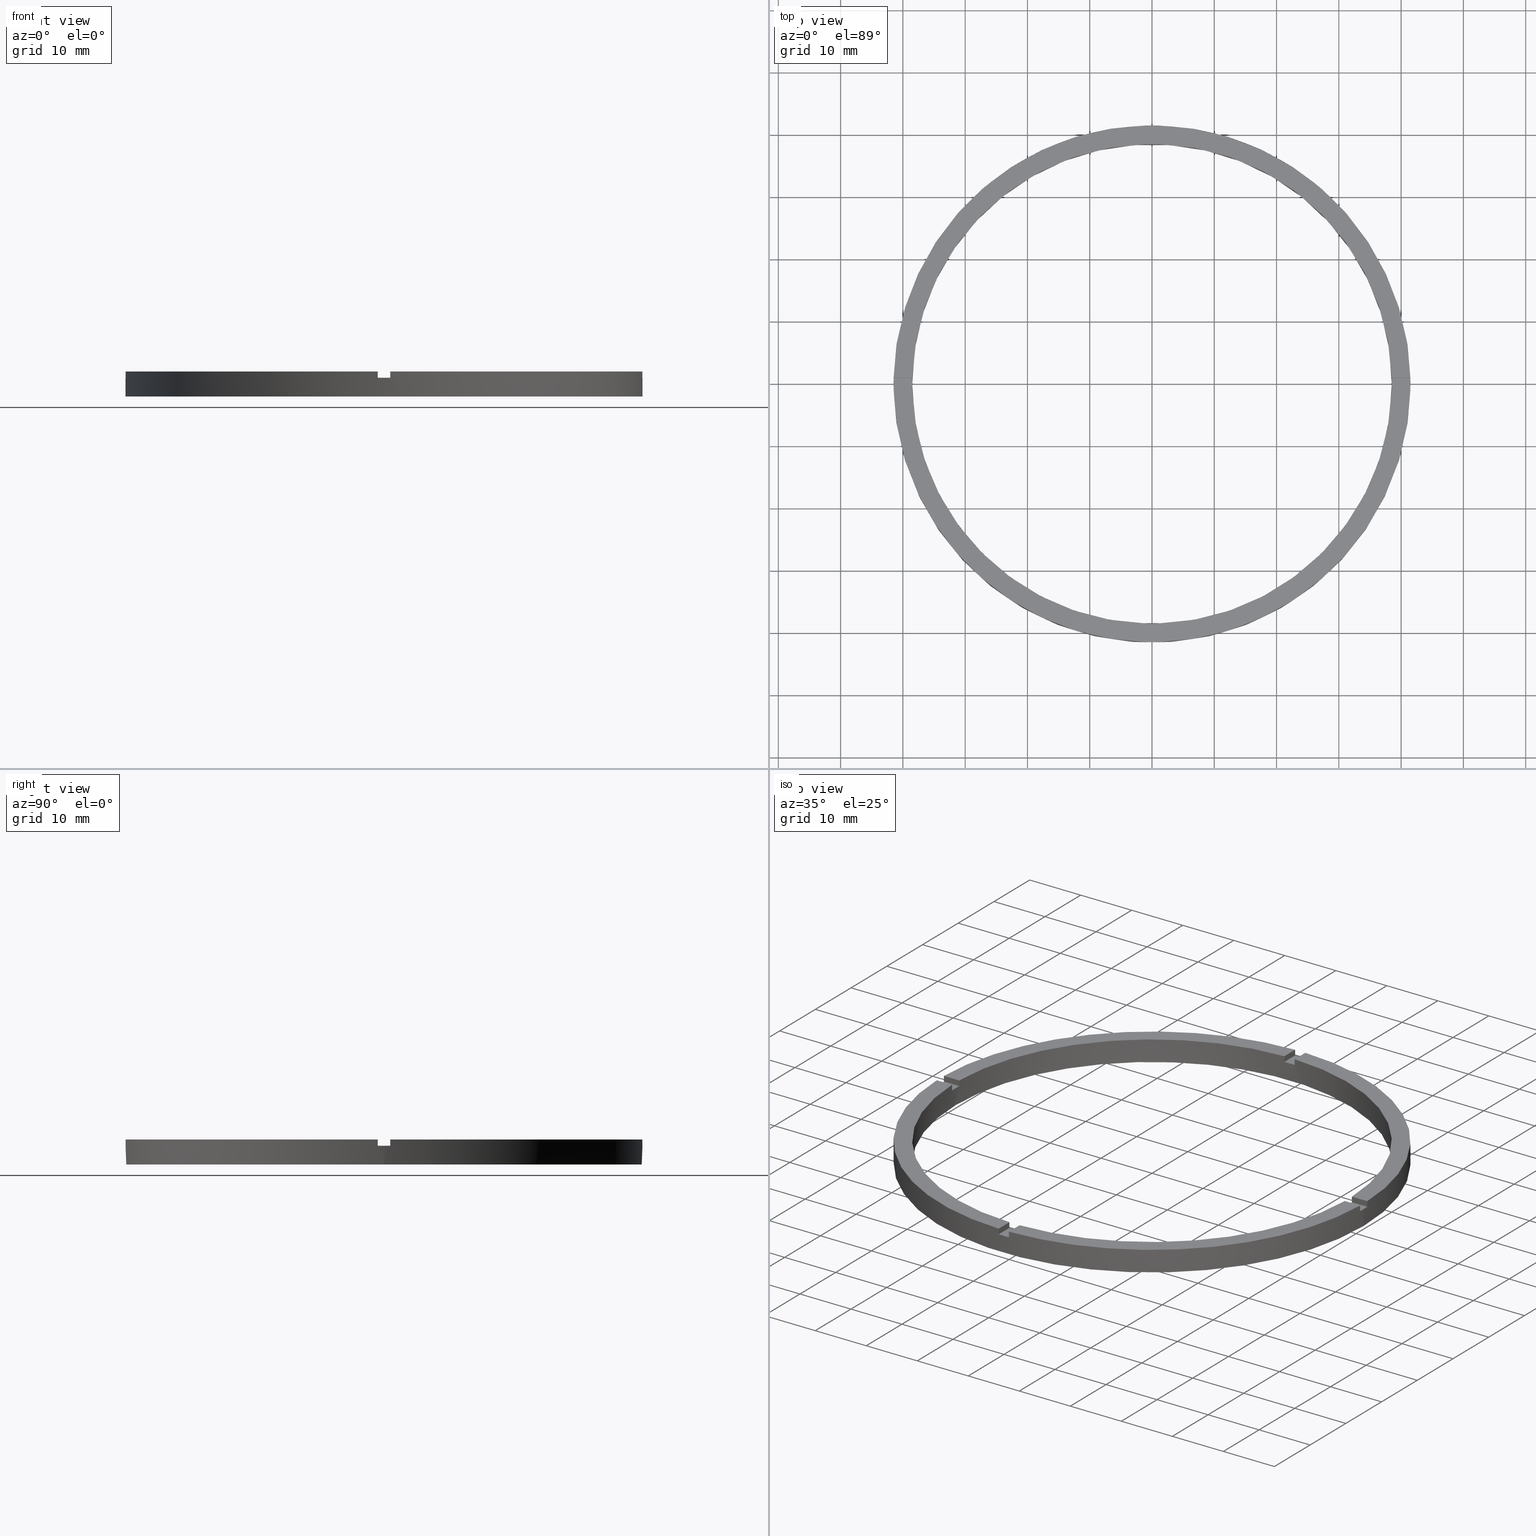
[diagram: canonical four-view strip — front | top / right | iso, engineering-drawing reading convention]
A machine part, canonical four-view strip (front | top / right | iso — engineering-drawing reading convention). The complete STEP part file that produces these views, byte-faithful:
ISO-10303-21;
HEADER;
FILE_DESCRIPTION (( 'STEP AP203' ),
    '1' );
FILE_NAME ('514171.step',
    '2024-12-26T02:44:27',
    ( 'MSI' ),
    ( '' ),
    'SwSTEP 2.0',
    'SolidWorks 2020',
    '' );
FILE_SCHEMA (( 'CONFIG_CONTROL_DESIGN' ));
ENDSEC;

DATA;
#1 = VERTEX_POINT ( 'NONE', #188 ) ;
#2 = DIRECTION ( 'NONE',  ( 1.000000000000000000, 0.000000000000000000, 0.000000000000000000 ) ) ;
#3 = EDGE_LOOP ( 'NONE', ( #752, #427, #535, #516 ) ) ;
#4 = ORIENTED_EDGE ( 'NONE', *, *, #138, .T. ) ;
#5 = ORIENTED_EDGE ( 'NONE', *, *, #576, .F. ) ;
#6 = EDGE_CURVE ( 'NONE', #448, #267, #406, .T. ) ;
#7 = DIRECTION ( 'NONE',  ( -0.000000000000000000, -0.000000000000000000, -1.000000000000000000 ) ) ;
#8 = AXIS2_PLACEMENT_3D ( 'NONE', #73, #270, #739 ) ;
#9 = ORIENTED_EDGE ( 'NONE', *, *, #248, .F. ) ;
#10 = ORIENTED_EDGE ( 'NONE', *, *, #568, .F. ) ;
#11 = APPROVAL ( #362, 'δָ��' ) ;
#12 = CARTESIAN_POINT ( 'NONE',  ( 0.000000000000000000, 0.000000000000000000, 0.000000000000000000 ) ) ;
#13 = PLANE ( 'NONE',  #591 ) ;
#14 = VERTEX_POINT ( 'NONE', #265 ) ;
#15 = APPLICATION_CONTEXT ( 'configuration controlled 3d designs of mechanical parts and assemblies' ) ;
#16 = VERTEX_POINT ( 'NONE', #416 ) ;
#17 = DIRECTION ( 'NONE',  ( -1.000000000000000000, 0.000000000000000000, 0.000000000000000000 ) ) ;
#18 = AXIS2_PLACEMENT_3D ( 'NONE', #46, #301, #646 ) ;
#19 = ORIENTED_EDGE ( 'NONE', *, *, #147, .T. ) ;
#20 = APPROVAL_ROLE ( '' ) ;
#21 = VERTEX_POINT ( 'NONE', #511 ) ;
#22 = ORIENTED_EDGE ( 'NONE', *, *, #627, .T. ) ;
#23 = DIRECTION ( 'NONE',  ( 1.000000000000000000, 0.000000000000000000, 0.000000000000000000 ) ) ;
#24 = VERTEX_POINT ( 'NONE', #132 ) ;
#25 = EDGE_CURVE ( 'NONE', #484, #14, #152, .T. ) ;
#26 = CARTESIAN_POINT ( 'NONE',  ( 38.50000000000000000, 4.714890176717309515E-15, 4.000000000000000000 ) ) ;
#27 = DIRECTION ( 'NONE',  ( 6.505213034913025371E-17, -1.000000000000000000, 0.000000000000000000 ) ) ;
#28 = ORIENTED_EDGE ( 'NONE', *, *, #82, .F. ) ;
#29 = PERSON_AND_ORGANIZATION_ROLE ( 'creator' ) ;
#30 = ORIENTED_EDGE ( 'NONE', *, *, #25, .F. ) ;
#31 = ORIENTED_EDGE ( 'NONE', *, *, #196, .T. ) ;
#32 = ADVANCED_FACE ( 'NONE', ( #428 ), #172, .F. ) ;
#33 = ORIENTED_EDGE ( 'NONE', *, *, #343, .T. ) ;
#34 = VERTEX_POINT ( 'NONE', #128 ) ;
#35 = EDGE_CURVE ( 'NONE', #564, #21, #690, .T. ) ;
#36 = APPLICATION_PROTOCOL_DEFINITION ( 'international standard', 'config_control_design', 1994, #65 ) ;
#37 = AXIS2_PLACEMENT_3D ( 'NONE', #59, #384, #135 ) ;
#38 = EDGE_LOOP ( 'NONE', ( #160, #551, #166, #28, #414, #542, #295, #675, #30, #469, #772, #519 ) ) ;
#39 = DIRECTION ( 'NONE',  ( -0.000000000000000000, -0.000000000000000000, -1.000000000000000000 ) ) ;
#40 = CARTESIAN_POINT ( 'NONE',  ( 0.9999999999998406830, -38.48701079585163853, 4.000000000000000000 ) ) ;
#41 = CARTESIAN_POINT ( 'NONE',  ( -31.50000000000018829, -1.000000000000026867, 4.000000000000000000 ) ) ;
#42 = ORIENTED_EDGE ( 'NONE', *, *, #546, .T. ) ;
#43 = ADVANCED_FACE ( 'NONE', ( #673 ), #374, .F. ) ;
#44 = ORIENTED_EDGE ( 'NONE', *, *, #653, .F. ) ;
#45 = EDGE_CURVE ( 'NONE', #16, #161, #681, .T. ) ;
#46 = CARTESIAN_POINT ( 'NONE',  ( 0.000000000000000000, 0.000000000000000000, 3.000000000000000000 ) ) ;
#47 = CARTESIAN_POINT ( 'NONE',  ( -1.000000000000025757, 41.48795005781799716, 4.000000000000000000 ) ) ;
#48 = EDGE_CURVE ( 'NONE', #556, #34, #173, .T. ) ;
#49 = AXIS2_PLACEMENT_3D ( 'NONE', #363, #289, #506 ) ;
#50 = AXIS2_PLACEMENT_3D ( 'NONE', #272, #370, #513 ) ;
#51 = CARTESIAN_POINT ( 'NONE',  ( -41.48795005781799716, 0.9999999999999711342, 4.000000000000000000 ) ) ;
#52 = DIRECTION ( 'NONE',  ( 0.000000000000000000, 0.000000000000000000, 1.000000000000000000 ) ) ;
#53 = AXIS2_PLACEMENT_3D ( 'NONE', #12, #581, #577 ) ;
#54 = CARTESIAN_POINT ( 'NONE',  ( 0.000000000000000000, 0.000000000000000000, 4.000000000000000000 ) ) ;
#55 = CARTESIAN_POINT ( 'NONE',  ( 0.000000000000000000, 0.000000000000000000, 4.000000000000000000 ) ) ;
#56 = ADVANCED_FACE ( 'NONE', ( #674 ), #57, .F. ) ;
#57 = PLANE ( 'NONE',  #315 ) ;
#58 = DIRECTION ( 'NONE',  ( 1.000000000000000000, 0.000000000000000000, -0.000000000000000000 ) ) ;
#59 = CARTESIAN_POINT ( 'NONE',  ( 0.9999999999998397948, -31.50000000000018119, 3.000000000000000000 ) ) ;
#60 = CARTESIAN_POINT ( 'NONE',  ( 0.000000000000000000, 0.000000000000000000, 0.000000000000000000 ) ) ;
#61 = CARTESIAN_POINT ( 'NONE',  ( 38.48701079585163853, 0.9999999999998432365, 3.000000000000000000 ) ) ;
#62 = CARTESIAN_POINT ( 'NONE',  ( -38.48701079585163143, 0.9999999999999715783, 4.000000000000000000 ) ) ;
#63 = EDGE_CURVE ( 'NONE', #505, #712, #167, .T. ) ;
#64 = DIRECTION ( 'NONE',  ( 0.000000000000000000, 0.000000000000000000, 1.000000000000000000 ) ) ;
#65 = APPLICATION_CONTEXT ( 'configuration controlled 3d designs of mechanical parts and assemblies' ) ;
#66 = CARTESIAN_POINT ( 'NONE',  ( -41.50000000000000000, 0.000000000000000000, 4.000000000000000000 ) ) ;
#67 = EDGE_CURVE ( 'NONE', #505, #555, #156, .T. ) ;
#68 = DATE_TIME_ROLE ( 'creation_date' ) ;
#69 = EDGE_CURVE ( 'NONE', #554, #529, #684, .T. ) ;
#70 = DIRECTION ( 'NONE',  ( 0.000000000000000000, 0.000000000000000000, 1.000000000000000000 ) ) ;
#71 = CARTESIAN_POINT ( 'NONE',  ( 0.000000000000000000, 0.000000000000000000, 4.000000000000000000 ) ) ;
#72 = AXIS2_PLACEMENT_3D ( 'NONE', #71, #80, #17 ) ;
#73 = CARTESIAN_POINT ( 'NONE',  ( 0.000000000000000000, 0.000000000000000000, 3.000000000000000000 ) ) ;
#74 = CARTESIAN_POINT ( 'NONE',  ( -1.000000000000025757, 41.48795005781799716, 4.000000000000000000 ) ) ;
#75 = EDGE_CURVE ( 'NONE', #556, #297, #691, .T. ) ;
#76 = DIRECTION ( 'NONE',  ( 0.000000000000000000, 0.000000000000000000, 1.000000000000000000 ) ) ;
#77 = DATE_TIME_ROLE ( 'classification_date' ) ;
#78 = DIRECTION ( 'NONE',  ( -1.000000000000000000, 0.000000000000000000, 0.000000000000000000 ) ) ;
#79 = CARTESIAN_POINT ( 'NONE',  ( -31.50000000000018829, -1.000000000000026867, 3.000000000000000000 ) ) ;
#80 = DIRECTION ( 'NONE',  ( -0.000000000000000000, -0.000000000000000000, -1.000000000000000000 ) ) ;
#81 = ADVANCED_FACE ( 'NONE', ( #420 ), #345, .T. ) ;
#82 = EDGE_CURVE ( 'NONE', #368, #16, #686, .T. ) ;
#83 = CALENDAR_DATE ( 2024, 26, 12 ) ;
#84 = CARTESIAN_POINT ( 'NONE',  ( 0.000000000000000000, 0.000000000000000000, 4.000000000000000000 ) ) ;
#85 = CARTESIAN_POINT ( 'NONE',  ( 41.48795005781799006, -1.000000000000156763, 3.000000000000000000 ) ) ;
#86 = ORGANIZATION ( 'δָ��', 'δָ��', '' ) ;
#87 = DIRECTION ( 'NONE',  ( 0.000000000000000000, 0.000000000000000000, 1.000000000000000000 ) ) ;
#88 = ADVANCED_FACE ( 'NONE', ( #706 ), #174, .T. ) ;
#89 = LOCAL_TIME ( 10, 44, 27.00000000000000000, #116 ) ;
#90 = EDGE_CURVE ( 'NONE', #557, #483, #464, .T. ) ;
#91 = CALENDAR_DATE ( 2024, 26, 12 ) ;
#92 = PLANE ( 'NONE',  #314 ) ;
#93 = EDGE_CURVE ( 'NONE', #564, #700, #466, .T. ) ;
#94 = APPROVAL_PERSON_ORGANIZATION ( #621, #266, #20 ) ;
#95 = CARTESIAN_POINT ( 'NONE',  ( 0.000000000000000000, 0.000000000000000000, 3.000000000000000000 ) ) ;
#96 = LINE ( 'NONE', #415, #624 ) ;
#97 = DIRECTION ( 'NONE',  ( 0.000000000000000000, 0.000000000000000000, 1.000000000000000000 ) ) ;
#98 = DIRECTION ( 'NONE',  ( 1.000000000000000000, 1.951563910473907735E-16, 0.000000000000000000 ) ) ;
#99 = CC_DESIGN_APPROVAL ( #266, ( #765 ) ) ;
#100 = DIRECTION ( 'NONE',  ( -0.000000000000000000, -0.000000000000000000, -1.000000000000000000 ) ) ;
#101 = LOCAL_TIME ( 10, 44, 27.00000000000000000, #628 ) ;
#102 = APPROVAL_DATE_TIME ( #615, #612 ) ;
#103 = CARTESIAN_POINT ( 'NONE',  ( -31.50000000000018829, 0.9999999999999731326, 3.000000000000000000 ) ) ;
#104 = DESIGN_CONTEXT ( 'detailed design', #65, 'design' ) ;
#105 = PERSON_AND_ORGANIZATION ( #672, #86 ) ;
#106 = PLANE ( 'NONE',  #371 ) ;
#107 = DATE_AND_TIME ( #344, #632 ) ;
#108 = LOCAL_TIME ( 10, 44, 27.00000000000000000, #350 ) ;
#109 = DIRECTION ( 'NONE',  ( 0.000000000000000000, 1.000000000000000000, 0.000000000000000000 ) ) ;
#110 = EDGE_LOOP ( 'NONE', ( #543, #778, #268, #507, #694, #767, #180, #429, #518, #574, #148, #178 ) ) ;
#111 = AXIS2_PLACEMENT_3D ( 'NONE', #216, #52, #288 ) ;
#112 = PERSON_AND_ORGANIZATION ( #672, #86 ) ;
#113 = CARTESIAN_POINT ( 'NONE',  ( -1.000000000000025757, 31.50000000000000000, 3.000000000000000000 ) ) ;
#114 = VERTEX_POINT ( 'NONE', #693 ) ;
#115 = PERSON_AND_ORGANIZATION ( #672, #86 ) ;
#116 = COORDINATED_UNIVERSAL_TIME_OFFSET ( 8, 0, .AHEAD. ) ;
#117 = CARTESIAN_POINT ( 'NONE',  ( 0.000000000000000000, 0.000000000000000000, 3.000000000000000000 ) ) ;
#118 = APPROVAL_DATE_TIME ( #107, #266 ) ;
#119 = PERSON_AND_ORGANIZATION_ROLE ( 'design_owner' ) ;
#120 = CARTESIAN_POINT ( 'NONE',  ( 41.50000000000000000, 5.082284216461515748E-15, 0.000000000000000000 ) ) ;
#121 = AXIS2_PLACEMENT_3D ( 'NONE', #400, #496, #245 ) ;
#122 = PERSON_AND_ORGANIZATION_ROLE ( 'classification_officer' ) ;
#123 = AXIS2_PLACEMENT_3D ( 'NONE', #337, #452, #233 ) ;
#124 = EDGE_CURVE ( 'NONE', #554, #300, #204, .T. ) ;
#125 = DIRECTION ( 'NONE',  ( 1.000000000000000000, 0.000000000000000000, -0.000000000000000000 ) ) ;
#126 = DIRECTION ( 'NONE',  ( 1.000000000000000000, 0.000000000000000000, 0.000000000000000000 ) ) ;
#127 = SECURITY_CLASSIFICATION ( '', '', #254 ) ;
#128 = CARTESIAN_POINT ( 'NONE',  ( 38.50000000000000000, 4.714890176717309515E-15, 0.000000000000000000 ) ) ;
#129 = CARTESIAN_POINT ( 'NONE',  ( 38.50000000000000000, 4.714890176717309515E-15, 3.000000000000000000 ) ) ;
#130 = ORIENTED_EDGE ( 'NONE', *, *, #707, .F. ) ;
#131 = PLANE ( 'NONE',  #488 ) ;
#132 = CARTESIAN_POINT ( 'NONE',  ( -41.48795005781799716, 0.9999999999999711342, 3.000000000000000000 ) ) ;
#133 = CARTESIAN_POINT ( 'NONE',  ( 0.9999999999999742428, 41.48795005781799716, 3.000000000000000000 ) ) ;
#134 = AXIS2_PLACEMENT_3D ( 'NONE', #729, #27, #322 ) ;
#135 = DIRECTION ( 'NONE',  ( -1.301042606982605074E-16, 1.000000000000000000, 0.000000000000000000 ) ) ;
#136 = DIRECTION ( 'NONE',  ( 0.000000000000000000, 0.000000000000000000, 1.000000000000000000 ) ) ;
#137 = CARTESIAN_POINT ( 'NONE',  ( -1.000000000000159428, -38.48701079585163143, 4.000000000000000000 ) ) ;
#138 = EDGE_CURVE ( 'NONE', #34, #290, #453, .T. ) ;
#139 = DIRECTION ( 'NONE',  ( 1.000000000000000000, 0.000000000000000000, -0.000000000000000000 ) ) ;
#140 = CARTESIAN_POINT ( 'NONE',  ( -31.50000000000018829, 0.9999999999999731326, 3.000000000000000000 ) ) ;
#141 = DIRECTION ( 'NONE',  ( 0.000000000000000000, 0.000000000000000000, 1.000000000000000000 ) ) ;
#142 = CARTESIAN_POINT ( 'NONE',  ( 0.9999999999999742428, 38.48701079585163143, 4.000000000000000000 ) ) ;
#143 = EDGE_CURVE ( 'NONE', #554, #484, #713, .T. ) ;
#144 = DIRECTION ( 'NONE',  ( 0.000000000000000000, 0.000000000000000000, 1.000000000000000000 ) ) ;
#145 = AXIS2_PLACEMENT_3D ( 'NONE', #60, #480, #303 ) ;
#146 = DIRECTION ( 'NONE',  ( 0.000000000000000000, 0.000000000000000000, 1.000000000000000000 ) ) ;
#147 = EDGE_CURVE ( 'NONE', #281, #505, #447, .T. ) ;
#148 = ORIENTED_EDGE ( 'NONE', *, *, #82, .T. ) ;
#149 = DIRECTION ( 'NONE',  ( -1.951563910473907735E-16, 1.000000000000000000, 0.000000000000000000 ) ) ;
#150 = ORIENTED_EDGE ( 'NONE', *, *, #248, .T. ) ;
#151 = CARTESIAN_POINT ( 'NONE',  ( 38.48701079585163143, -1.000000000000156763, 4.000000000000000000 ) ) ;
#152 = CIRCLE ( 'NONE', #587, 41.50000000000000000 ) ;
#153 = ORIENTED_EDGE ( 'NONE', *, *, #486, .T. ) ;
#154 = ORIENTED_EDGE ( 'NONE', *, *, #473, .F. ) ;
#155 = CARTESIAN_POINT ( 'NONE',  ( 31.49999999999999289, -1.000000000000157430, 3.000000000000000000 ) ) ;
#156 = LINE ( 'NONE', #571, #411 ) ;
#157 = DIRECTION ( 'NONE',  ( -0.000000000000000000, -0.000000000000000000, -1.000000000000000000 ) ) ;
#158 = ORIENTED_EDGE ( 'NONE', *, *, #546, .F. ) ;
#159 = EDGE_CURVE ( 'NONE', #521, #700, #437, .T. ) ;
#160 = ORIENTED_EDGE ( 'NONE', *, *, #608, .F. ) ;
#161 = VERTEX_POINT ( 'NONE', #120 ) ;
#162 = DIRECTION ( 'NONE',  ( -0.000000000000000000, 0.000000000000000000, 1.000000000000000000 ) ) ;
#163 = CC_DESIGN_APPROVAL ( #612, ( #648 ) ) ;
#164 = EDGE_LOOP ( 'NONE', ( #745, #490, #668, #431 ) ) ;
#165 = DIRECTION ( 'NONE',  ( 0.000000000000000000, 0.000000000000000000, 1.000000000000000000 ) ) ;
#166 = ORIENTED_EDGE ( 'NONE', *, *, #328, .T. ) ;
#167 = CIRCLE ( 'NONE', #444, 41.50000000000000000 ) ;
#168 = AXIS2_PLACEMENT_3D ( 'NONE', #660, #732, #207 ) ;
#169 = CLOSED_SHELL ( 'NONE', ( #340, #461, #319, #636, #393, #387, #329, #661, #32, #601, #56, #666, #294, #43, #81, #324, #759, #530, #220, #418, #88 ) ) ;
#170 = ORIENTED_EDGE ( 'NONE', *, *, #45, .F. ) ;
#171 = VERTEX_POINT ( 'NONE', #404 ) ;
#172 = CYLINDRICAL_SURFACE ( 'NONE', #657, 38.50000000000000000 ) ;
#173 = LINE ( 'NONE', #26, #408 ) ;
#174 = PLANE ( 'NONE',  #251 ) ;
#175 = AXIS2_PLACEMENT_3D ( 'NONE', #735, #747, #512 ) ;
#176 = ORIENTED_EDGE ( 'NONE', *, *, #780, .T. ) ;
#177 = ORIENTED_EDGE ( 'NONE', *, *, #67, .F. ) ;
#178 = ORIENTED_EDGE ( 'NONE', *, *, #45, .T. ) ;
#179 = ORIENTED_EDGE ( 'NONE', *, *, #291, .T. ) ;
#180 = ORIENTED_EDGE ( 'NONE', *, *, #159, .T. ) ;
#181 = ORIENTED_EDGE ( 'NONE', *, *, #379, .F. ) ;
#182 = MECHANICAL_CONTEXT ( 'NONE', #15, 'mechanical' ) ;
#183 = EDGE_LOOP ( 'NONE', ( #698, #435, #687, #692 ) ) ;
#184 = CYLINDRICAL_SURFACE ( 'NONE', #442, 38.50000000000000000 ) ;
#185 = LINE ( 'NONE', #617, #479 ) ;
#186 = CARTESIAN_POINT ( 'NONE',  ( -38.48701079585163143, 0.9999999999999715783, 4.000000000000000000 ) ) ;
#187 = VECTOR ( 'NONE', #582, 1000.000000000000000 ) ;
#188 = CARTESIAN_POINT ( 'NONE',  ( 0.9999999999998406830, -38.48701079585163853, 3.000000000000000000 ) ) ;
#189 = CARTESIAN_POINT ( 'NONE',  ( 38.48701079585163853, 0.9999999999998432365, 4.000000000000000000 ) ) ;
#190 = VECTOR ( 'NONE', #157, 1000.000000000000000 ) ;
#191 = EDGE_CURVE ( 'NONE', #527, #547, #450, .T. ) ;
#192 = FACE_OUTER_BOUND ( 'NONE', #209, .T. ) ;
#193 = AXIS2_PLACEMENT_3D ( 'NONE', #703, #70, #654 ) ;
#194 = FACE_OUTER_BOUND ( 'NONE', #183, .T. ) ;
#195 = EDGE_LOOP ( 'NONE', ( #130, #271, #285, #665 ) ) ;
#196 = EDGE_CURVE ( 'NONE', #525, #300, #715, .T. ) ;
#197 = LINE ( 'NONE', #215, #454 ) ;
#198 = ORIENTED_EDGE ( 'NONE', *, *, #561, .T. ) ;
#199 = DIRECTION ( 'NONE',  ( 1.000000000000000000, 1.951563910473907735E-16, -0.000000000000000000 ) ) ;
#200 = CIRCLE ( 'NONE', #642, 41.50000000000000000 ) ;
#201 = PRODUCT_DEFINITION_SHAPE ( 'NONE', 'NONE',  #765 ) ;
#202 = CIRCLE ( 'NONE', #123, 38.50000000000000000 ) ;
#203 = CARTESIAN_POINT ( 'NONE',  ( -1.000000000000159428, -38.48701079585163143, 3.000000000000000000 ) ) ;
#204 = CIRCLE ( 'NONE', #424, 38.50000000000000000 ) ;
#205 = CIRCLE ( 'NONE', #609, 41.50000000000000000 ) ;
#206 = DIRECTION ( 'NONE',  ( -1.000000000000000000, -6.505213034913025371E-17, 0.000000000000000000 ) ) ;
#207 = DIRECTION ( 'NONE',  ( -1.000000000000000000, 0.000000000000000000, 0.000000000000000000 ) ) ;
#208 = LINE ( 'NONE', #74, #211 ) ;
#209 = EDGE_LOOP ( 'NONE', ( #538, #150, #412, #750 ) ) ;
#210 = EDGE_CURVE ( 'NONE', #290, #34, #440, .T. ) ;
#211 = VECTOR ( 'NONE', #217, 1000.000000000000000 ) ;
#212 = FACE_OUTER_BOUND ( 'NONE', #545, .T. ) ;
#213 = VECTOR ( 'NONE', #7, 1000.000000000000000 ) ;
#214 = VECTOR ( 'NONE', #100, 1000.000000000000000 ) ;
#215 = CARTESIAN_POINT ( 'NONE',  ( -1.000000000000025757, 31.50000000000000000, 4.000000000000000000 ) ) ;
#216 = CARTESIAN_POINT ( 'NONE',  ( 0.000000000000000000, 0.000000000000000000, 3.000000000000000000 ) ) ;
#217 = DIRECTION ( 'NONE',  ( -0.000000000000000000, -0.000000000000000000, -1.000000000000000000 ) ) ;
#218 = LINE ( 'NONE', #79, #471 ) ;
#219 = ORIENTED_EDGE ( 'NONE', *, *, #576, .T. ) ;
#220 = ADVANCED_FACE ( 'NONE', ( #467 ), #348, .F. ) ;
#221 = LINE ( 'NONE', #390, #733 ) ;
#222 = CC_DESIGN_PERSON_AND_ORGANIZATION_ASSIGNMENT ( #614, #122, ( #127 ) ) ;
#223 = VECTOR ( 'NONE', #64, 1000.000000000000000 ) ;
#224 = CIRCLE ( 'NONE', #749, 38.50000000000000000 ) ;
#225 = DIRECTION ( 'NONE',  ( -0.000000000000000000, -0.000000000000000000, -1.000000000000000000 ) ) ;
#226 = MANIFOLD_SOLID_BREP ( '�г�-����1', #169 ) ;
#227 = ORIENTED_EDGE ( 'NONE', *, *, #75, .F. ) ;
#228 = VECTOR ( 'NONE', #677, 1000.000000000000000 ) ;
#229 = EDGE_CURVE ( 'NONE', #521, #779, #708, .T. ) ;
#230 = CIRCLE ( 'NONE', #652, 38.50000000000000000 ) ;
#231 = LINE ( 'NONE', #380, #748 ) ;
#232 = CARTESIAN_POINT ( 'NONE',  ( 31.49999999999999289, 0.9999999999998425704, 3.000000000000000000 ) ) ;
#233 = DIRECTION ( 'NONE',  ( 1.000000000000000000, 0.000000000000000000, 0.000000000000000000 ) ) ;
#234 = ORIENTED_EDGE ( 'NONE', *, *, #138, .F. ) ;
#235 = CIRCLE ( 'NONE', #111, 41.50000000000000000 ) ;
#236 = VECTOR ( 'NONE', #286, 1000.000000000000000 ) ;
#237 = ORIENTED_EDGE ( 'NONE', *, *, #396, .T. ) ;
#238 = DIRECTION ( 'NONE',  ( 1.301042606982605074E-16, -1.000000000000000000, 0.000000000000000000 ) ) ;
#239 = FACE_OUTER_BOUND ( 'NONE', #533, .T. ) ;
#240 = ORIENTED_EDGE ( 'NONE', *, *, #93, .T. ) ;
#241 = LINE ( 'NONE', #439, #493 ) ;
#242 = VECTOR ( 'NONE', #389, 1000.000000000000000 ) ;
#243 = CIRCLE ( 'NONE', #18, 38.50000000000000000 ) ;
#244 = ORIENTED_EDGE ( 'NONE', *, *, #124, .F. ) ;
#245 = DIRECTION ( 'NONE',  ( 1.000000000000000000, 0.000000000000000000, 0.000000000000000000 ) ) ;
#246 = VECTOR ( 'NONE', #683, 1000.000000000000000 ) ;
#247 = EDGE_LOOP ( 'NONE', ( #10, #679, #176, #743 ) ) ;
#248 = EDGE_CURVE ( 'NONE', #547, #1, #702, .T. ) ;
#249 = DIRECTION ( 'NONE',  ( -0.000000000000000000, -0.000000000000000000, -1.000000000000000000 ) ) ;
#250 = ORIENTED_EDGE ( 'NONE', *, *, #498, .T. ) ;
#251 = AXIS2_PLACEMENT_3D ( 'NONE', #397, #470, #604 ) ;
#252 = ORIENTED_EDGE ( 'NONE', *, *, #75, .T. ) ;
#253 = ORIENTED_EDGE ( 'NONE', *, *, #124, .T. ) ;
#254 = SECURITY_CLASSIFICATION_LEVEL ( 'unclassified' ) ;
#255 = DIRECTION ( 'NONE',  ( -1.301042606982605074E-16, 1.000000000000000000, -0.000000000000000000 ) ) ;
#256 = CARTESIAN_POINT ( 'NONE',  ( 0.000000000000000000, 0.000000000000000000, 3.000000000000000000 ) ) ;
#257 = ORIENTED_EDGE ( 'NONE', *, *, #780, .F. ) ;
#258 = AXIS2_PLACEMENT_3D ( 'NONE', #596, #87, #139 ) ;
#259 = ORIENTED_EDGE ( 'NONE', *, *, #48, .T. ) ;
#260 = CARTESIAN_POINT ( 'NONE',  ( -1.000000000000159428, -38.48701079585163143, 4.000000000000000000 ) ) ;
#261 = VERTEX_POINT ( 'NONE', #474 ) ;
#262 = AXIS2_PLACEMENT_3D ( 'NONE', #336, #586, #238 ) ;
#263 = ORIENTED_EDGE ( 'NONE', *, *, #48, .F. ) ;
#264 = APPROVAL_STATUS ( 'not_yet_approved' ) ;
#265 = CARTESIAN_POINT ( 'NONE',  ( -1.000000000000025757, 41.48795005781799716, 3.000000000000000000 ) ) ;
#266 = APPROVAL ( #357, 'δָ��' ) ;
#267 = VERTEX_POINT ( 'NONE', #342 ) ;
#268 = ORIENTED_EDGE ( 'NONE', *, *, #67, .T. ) ;
#269 = DIRECTION ( 'NONE',  ( -1.000000000000000000, -1.951563910473907735E-16, 0.000000000000000000 ) ) ;
#270 = DIRECTION ( 'NONE',  ( 0.000000000000000000, 0.000000000000000000, 1.000000000000000000 ) ) ;
#271 = ORIENTED_EDGE ( 'NONE', *, *, #682, .T. ) ;
#272 = CARTESIAN_POINT ( 'NONE',  ( 0.000000000000000000, 0.000000000000000000, 4.000000000000000000 ) ) ;
#273 = ORIENTED_EDGE ( 'NONE', *, *, #229, .T. ) ;
#274 = ORIENTED_EDGE ( 'NONE', *, *, #616, .F. ) ;
#275 = ORIENTED_EDGE ( 'NONE', *, *, #771, .T. ) ;
#276 = DIRECTION ( 'NONE',  ( -0.000000000000000000, -0.000000000000000000, -1.000000000000000000 ) ) ;
#277 = VERTEX_POINT ( 'NONE', #637 ) ;
#278 = ORIENTED_EDGE ( 'NONE', *, *, #413, .F. ) ;
#279 = DIRECTION ( 'NONE',  ( 0.000000000000000000, 0.000000000000000000, 1.000000000000000000 ) ) ;
#280 = EDGE_LOOP ( 'NONE', ( #273, #275, #770, #481 ) ) ;
#281 = VERTEX_POINT ( 'NONE', #388 ) ;
#282 = CARTESIAN_POINT ( 'NONE',  ( 0.000000000000000000, 0.000000000000000000, 3.000000000000000000 ) ) ;
#283 = EDGE_LOOP ( 'NONE', ( #33, #259, #559, #44, #153, #5, #179, #402, #421, #9, #42, #274 ) ) ;
#284 = CARTESIAN_POINT ( 'NONE',  ( 0.000000000000000000, 0.000000000000000000, 3.000000000000000000 ) ) ;
#285 = ORIENTED_EDGE ( 'NONE', *, *, #734, .T. ) ;
#286 = DIRECTION ( 'NONE',  ( -0.000000000000000000, -0.000000000000000000, -1.000000000000000000 ) ) ;
#287 = EDGE_LOOP ( 'NONE', ( #560, #158, #695, #405 ) ) ;
#288 = DIRECTION ( 'NONE',  ( 1.000000000000000000, 0.000000000000000000, 0.000000000000000000 ) ) ;
#289 = DIRECTION ( 'NONE',  ( 1.000000000000000000, -0.000000000000000000, 0.000000000000000000 ) ) ;
#290 = VERTEX_POINT ( 'NONE', #392 ) ;
#291 = EDGE_CURVE ( 'NONE', #21, #483, #731, .T. ) ;
#292 = CARTESIAN_POINT ( 'NONE',  ( 0.9999999999999742428, 38.48701079585163143, 4.000000000000000000 ) ) ;
#293 = EDGE_CURVE ( 'NONE', #503, #541, #462, .T. ) ;
#294 = ADVANCED_FACE ( 'NONE', ( #192 ), #457, .F. ) ;
#295 = ORIENTED_EDGE ( 'NONE', *, *, #293, .F. ) ;
#296 = CARTESIAN_POINT ( 'NONE',  ( -1.000000000000025757, 38.48701079585163143, 3.000000000000000000 ) ) ;
#297 = VERTEX_POINT ( 'NONE', #61 ) ;
#298 = CC_DESIGN_APPROVAL ( #11, ( #127 ) ) ;
#299 = DIRECTION ( 'NONE',  ( -6.505213034913025371E-17, 1.000000000000000000, 0.000000000000000000 ) ) ;
#300 = VERTEX_POINT ( 'NONE', #296 ) ;
#301 = DIRECTION ( 'NONE',  ( 0.000000000000000000, 0.000000000000000000, 1.000000000000000000 ) ) ;
#302 = DIRECTION ( 'NONE',  ( 0.000000000000000000, 0.000000000000000000, 1.000000000000000000 ) ) ;
#303 = DIRECTION ( 'NONE',  ( 1.000000000000000000, 0.000000000000000000, 0.000000000000000000 ) ) ;
#304 = EDGE_CURVE ( 'NONE', #24, #541, #711, .T. ) ;
#305 = CARTESIAN_POINT ( 'NONE',  ( -1.000000000000025757, 38.48701079585163143, 4.000000000000000000 ) ) ;
#306 =( LENGTH_UNIT ( ) NAMED_UNIT ( * ) SI_UNIT ( .MILLI., .METRE. ) );
#307 = CARTESIAN_POINT ( 'NONE',  ( 0.000000000000000000, 0.000000000000000000, 3.000000000000000000 ) ) ;
#308 = DIRECTION ( 'NONE',  ( 1.000000000000000000, 0.000000000000000000, 0.000000000000000000 ) ) ;
#309 = EDGE_CURVE ( 'NONE', #503, #525, #197, .T. ) ;
#310 = PERSON_AND_ORGANIZATION_ROLE ( 'design_supplier' ) ;
#311 = CARTESIAN_POINT ( 'NONE',  ( 0.000000000000000000, 0.000000000000000000, 4.000000000000000000 ) ) ;
#312 = CARTESIAN_POINT ( 'NONE',  ( 31.49999999999999289, -1.000000000000157430, 4.000000000000000000 ) ) ;
#313 = PLANE ( 'NONE',  #175 ) ;
#314 = AXIS2_PLACEMENT_3D ( 'NONE', #689, #375, #430 ) ;
#315 = AXIS2_PLACEMENT_3D ( 'NONE', #103, #149, #500 ) ;
#316 = CARTESIAN_POINT ( 'NONE',  ( 41.50000000000000000, 5.082284216461515748E-15, 3.000000000000000000 ) ) ;
#317 = CARTESIAN_POINT ( 'NONE',  ( 0.9999999999998411271, -41.48795005781800427, 3.000000000000000000 ) ) ;
#318 = CC_DESIGN_DATE_AND_TIME_ASSIGNMENT ( #618, #68, ( #765 ) ) ;
#319 = ADVANCED_FACE ( 'NONE', ( #194 ), #106, .T. ) ;
#320 = PERSON_AND_ORGANIZATION_ROLE ( 'creator' ) ;
#321 = CARTESIAN_POINT ( 'NONE',  ( 41.48795005781800427, 0.9999999999998432365, 4.000000000000000000 ) ) ;
#323 = DIRECTION ( 'NONE',  ( 1.000000000000000000, 0.000000000000000000, 0.000000000000000000 ) ) ;
#322 = DIRECTION ( 'NONE',  ( 1.000000000000000000, 6.505213034913025371E-17, 0.000000000000000000 ) ) ;
#324 = ADVANCED_FACE ( 'NONE', ( #482 ), #131, .F. ) ;
#325 = DIRECTION ( 'NONE',  ( 1.000000000000000000, 0.000000000000000000, 0.000000000000000000 ) ) ;
#326 = AXIS2_PLACEMENT_3D ( 'NONE', #445, #279, #323 ) ;
#327 = CARTESIAN_POINT ( 'NONE',  ( 0.9999999999998411271, -41.48795005781800427, 4.000000000000000000 ) ) ;
#328 = EDGE_CURVE ( 'NONE', #161, #16, #200, .T. ) ;
#329 = ADVANCED_FACE ( 'NONE', ( #714, #455 ), #92, .F. ) ;
#330 = DIRECTION ( 'NONE',  ( 1.000000000000000000, 0.000000000000000000, 0.000000000000000000 ) ) ;
#331 = DIRECTION ( 'NONE',  ( -1.301042606982605074E-16, 1.000000000000000000, -0.000000000000000000 ) ) ;
#332 = CARTESIAN_POINT ( 'NONE',  ( 0.9999999999998411271, -41.48795005781800427, 4.000000000000000000 ) ) ;
#333 = DIRECTION ( 'NONE',  ( 1.000000000000000000, 0.000000000000000000, -0.000000000000000000 ) ) ;
#334 = EDGE_CURVE ( 'NONE', #484, #267, #725, .T. ) ;
#335 = AXIS2_PLACEMENT_3D ( 'NONE', #84, #97, #781 ) ;
#336 = CARTESIAN_POINT ( 'NONE',  ( -1.000000000000160316, -31.50000000000018119, 3.000000000000000000 ) ) ;
#337 = CARTESIAN_POINT ( 'NONE',  ( 0.000000000000000000, 0.000000000000000000, 3.000000000000000000 ) ) ;
#338 = CARTESIAN_POINT ( 'NONE',  ( 38.48701079585163143, -1.000000000000156763, 4.000000000000000000 ) ) ;
#339 = CARTESIAN_POINT ( 'NONE',  ( -41.48795005781799716, -1.000000000000028866, 4.000000000000000000 ) ) ;
#340 = ADVANCED_FACE ( 'NONE', ( #721 ), #184, .F. ) ;
#341 = UNCERTAINTY_MEASURE_WITH_UNIT (LENGTH_MEASURE( 1.000000000000000082E-05 ), #306, 'distance_accuracy_value', 'NONE');
#342 = CARTESIAN_POINT ( 'NONE',  ( 0.9999999999999742428, 41.48795005781799716, 4.000000000000000000 ) ) ;
#343 = EDGE_CURVE ( 'NONE', #281, #556, #202, .T. ) ;
#344 = CALENDAR_DATE ( 2024, 26, 12 ) ;
#345 = PLANE ( 'NONE',  #696 ) ;
#346 = EDGE_CURVE ( 'NONE', #527, #555, #205, .T. ) ;
#347 = VECTOR ( 'NONE', #593, 1000.000000000000000 ) ;
#348 = PLANE ( 'NONE',  #629 ) ;
#349 = LOCAL_TIME ( 10, 44, 27.00000000000000000, #354 ) ;
#350 = COORDINATED_UNIVERSAL_TIME_OFFSET ( 8, 0, .AHEAD. ) ;
#351 = AXIS2_PLACEMENT_3D ( 'NONE', #508, #613, #126 ) ;
#352 = PERSON_AND_ORGANIZATION ( #672, #86 ) ;
#353 = LINE ( 'NONE', #517, #649 ) ;
#354 = COORDINATED_UNIVERSAL_TIME_OFFSET ( 8, 0, .AHEAD. ) ;
#355 = VECTOR ( 'NONE', #269, 1000.000000000000000 ) ;
#356 = LINE ( 'NONE', #140, #355 ) ;
#357 = APPROVAL_STATUS ( 'not_yet_approved' ) ;
#358 = DIRECTION ( 'NONE',  ( 1.000000000000000000, 6.505213034913025371E-17, 0.000000000000000000 ) ) ;
#359 = CALENDAR_DATE ( 2024, 26, 12 ) ;
#360 = FACE_OUTER_BOUND ( 'NONE', #550, .T. ) ;
#361 = PERSON_AND_ORGANIZATION ( #672, #86 ) ;
#362 = APPROVAL_STATUS ( 'not_yet_approved' ) ;
#363 = CARTESIAN_POINT ( 'NONE',  ( 0.9999999999999742428, 31.50000000000000000, 3.000000000000000000 ) ) ;
#364 = CIRCLE ( 'NONE', #351, 41.50000000000000000 ) ;
#365 = CARTESIAN_POINT ( 'NONE',  ( -31.50000000000018829, 0.9999999999999731326, 4.000000000000000000 ) ) ;
#366 = DATE_AND_TIME ( #91, #108 ) ;
#367 = VECTOR ( 'NONE', #573, 1000.000000000000000 ) ;
#368 = VERTEX_POINT ( 'NONE', #544 ) ;
#369 = APPLICATION_PROTOCOL_DEFINITION ( 'international standard', 'config_control_design', 1994, #15 ) ;
#370 = DIRECTION ( 'NONE',  ( 0.000000000000000000, 0.000000000000000000, 1.000000000000000000 ) ) ;
#371 = AXIS2_PLACEMENT_3D ( 'NONE', #600, #144, #597 ) ;
#372 = EDGE_CURVE ( 'NONE', #448, #277, #221, .T. ) ;
#373 = SHAPE_DEFINITION_REPRESENTATION ( #201, #394 ) ;
#374 = PLANE ( 'NONE',  #262 ) ;
#375 = DIRECTION ( 'NONE',  ( 0.000000000000000000, 0.000000000000000000, 1.000000000000000000 ) ) ;
#376 = DIRECTION ( 'NONE',  ( 1.951563910473907735E-16, -1.000000000000000000, 0.000000000000000000 ) ) ;
#377 = DIRECTION ( 'NONE',  ( 0.000000000000000000, 0.000000000000000000, 1.000000000000000000 ) ) ;
#378 = AXIS2_PLACEMENT_3D ( 'NONE', #386, #302, #333 ) ;
#379 = EDGE_CURVE ( 'NONE', #564, #171, #468, .T. ) ;
#380 = CARTESIAN_POINT ( 'NONE',  ( 31.49999999999999289, 0.9999999999998425704, 3.000000000000000000 ) ) ;
#381 = AXIS2_PLACEMENT_3D ( 'NONE', #764, #136, #325 ) ;
#382 = CARTESIAN_POINT ( 'NONE',  ( 0.000000000000000000, 0.000000000000000000, 3.000000000000000000 ) ) ;
#383 = DIRECTION ( 'NONE',  ( 0.000000000000000000, 0.000000000000000000, 1.000000000000000000 ) ) ;
#384 = DIRECTION ( 'NONE',  ( 1.000000000000000000, 1.301042606982605074E-16, 0.000000000000000000 ) ) ;
#385 = CARTESIAN_POINT ( 'NONE',  ( -38.48701079585163143, -1.000000000000028422, 4.000000000000000000 ) ) ;
#386 = CARTESIAN_POINT ( 'NONE',  ( 0.000000000000000000, 0.000000000000000000, 4.000000000000000000 ) ) ;
#387 = ADVANCED_FACE ( 'NONE', ( #475 ), #539, .T. ) ;
#388 = CARTESIAN_POINT ( 'NONE',  ( 38.48701079585163143, -1.000000000000156763, 3.000000000000000000 ) ) ;
#389 = DIRECTION ( 'NONE',  ( 0.000000000000000000, 0.000000000000000000, 1.000000000000000000 ) ) ;
#390 = CARTESIAN_POINT ( 'NONE',  ( 31.49999999999999289, 0.9999999999998425704, 4.000000000000000000 ) ) ;
#391 = DIRECTION ( 'NONE',  ( 1.000000000000000000, 0.000000000000000000, 0.000000000000000000 ) ) ;
#392 = CARTESIAN_POINT ( 'NONE',  ( -38.50000000000000000, 0.000000000000000000, 0.000000000000000000 ) ) ;
#393 = ADVANCED_FACE ( 'NONE', ( #704 ), #685, .T. ) ;
#394 = ADVANCED_BREP_SHAPE_REPRESENTATION ( '514171', ( #226, #53 ), #515 ) ;
#395 = CARTESIAN_POINT ( 'NONE',  ( 0.9999999999998406830, -38.48701079585163853, 4.000000000000000000 ) ) ;
#396 = EDGE_CURVE ( 'NONE', #776, #555, #463, .T. ) ;
#397 = CARTESIAN_POINT ( 'NONE',  ( 0.000000000000000000, 0.000000000000000000, 3.000000000000000000 ) ) ;
#398 = DIRECTION ( 'NONE',  ( -0.000000000000000000, 0.000000000000000000, 1.000000000000000000 ) ) ;
#399 = CC_DESIGN_DATE_AND_TIME_ASSIGNMENT ( #631, #77, ( #127 ) ) ;
#400 = CARTESIAN_POINT ( 'NONE',  ( 0.000000000000000000, 0.000000000000000000, 0.000000000000000000 ) ) ;
#401 = ORIENTED_EDGE ( 'NONE', *, *, #35, .T. ) ;
#402 = ORIENTED_EDGE ( 'NONE', *, *, #90, .F. ) ;
#403 = APPROVAL_ROLE ( '' ) ;
#404 = CARTESIAN_POINT ( 'NONE',  ( -41.48795005781799716, -1.000000000000028866, 3.000000000000000000 ) ) ;
#405 = ORIENTED_EDGE ( 'NONE', *, *, #346, .T. ) ;
#406 = CIRCLE ( 'NONE', #50, 41.50000000000000000 ) ;
#407 = CC_DESIGN_PERSON_AND_ORGANIZATION_ASSIGNMENT ( #115, #320, ( #648 ) ) ;
#408 = VECTOR ( 'NONE', #760, 1000.000000000000000 ) ;
#409 = VECTOR ( 'NONE', #728, 1000.000000000000000 ) ;
#410 = VERTEX_POINT ( 'NONE', #528 ) ;
#411 = VECTOR ( 'NONE', #658, 1000.000000000000000 ) ;
#412 = ORIENTED_EDGE ( 'NONE', *, *, #771, .F. ) ;
#413 = EDGE_CURVE ( 'NONE', #503, #14, #208, .T. ) ;
#414 = ORIENTED_EDGE ( 'NONE', *, *, #627, .F. ) ;
#415 = CARTESIAN_POINT ( 'NONE',  ( -1.000000000000160316, -31.50000000000018119, 4.000000000000000000 ) ) ;
#416 = CARTESIAN_POINT ( 'NONE',  ( -41.50000000000000000, 0.000000000000000000, 0.000000000000000000 ) ) ;
#417 = ORIENTED_EDGE ( 'NONE', *, *, #595, .F. ) ;
#418 = ADVANCED_FACE ( 'NONE', ( #477 ), #590, .F. ) ;
#419 = ORIENTED_EDGE ( 'NONE', *, *, #682, .F. ) ;
#420 = FACE_OUTER_BOUND ( 'NONE', #280, .T. ) ;
#421 = ORIENTED_EDGE ( 'NONE', *, *, #422, .T. ) ;
#422 = EDGE_CURVE ( 'NONE', #557, #1, #224, .T. ) ;
#423 = ORIENTED_EDGE ( 'NONE', *, *, #25, .T. ) ;
#424 = AXIS2_PLACEMENT_3D ( 'NONE', #307, #710, #391 ) ;
#425 = DIRECTION ( 'NONE',  ( 0.000000000000000000, 0.000000000000000000, 1.000000000000000000 ) ) ;
#426 = ORIENTED_EDGE ( 'NONE', *, *, #309, .T. ) ;
#427 = ORIENTED_EDGE ( 'NONE', *, *, #69, .T. ) ;
#428 = FACE_OUTER_BOUND ( 'NONE', #579, .T. ) ;
#429 = ORIENTED_EDGE ( 'NONE', *, *, #93, .F. ) ;
#430 = DIRECTION ( 'NONE',  ( 1.000000000000000000, 0.000000000000000000, -0.000000000000000000 ) ) ;
#431 = ORIENTED_EDGE ( 'NONE', *, *, #655, .F. ) ;
#432 = DIRECTION ( 'NONE',  ( 1.000000000000000000, 0.000000000000000000, 0.000000000000000000 ) ) ;
#433 = DIRECTION ( 'NONE',  ( 1.000000000000000000, 0.000000000000000000, 0.000000000000000000 ) ) ;
#434 = ORIENTED_EDGE ( 'NONE', *, *, #436, .T. ) ;
#435 = ORIENTED_EDGE ( 'NONE', *, *, #293, .T. ) ;
#436 = EDGE_CURVE ( 'NONE', #171, #114, #218, .T. ) ;
#437 = LINE ( 'NONE', #722, #223 ) ;
#438 = DIRECTION ( 'NONE',  ( 1.000000000000000000, 0.000000000000000000, 0.000000000000000000 ) ) ;
#439 = CARTESIAN_POINT ( 'NONE',  ( 0.9999999999999742428, 31.50000000000000000, 4.000000000000000000 ) ) ;
#440 = CIRCLE ( 'NONE', #121, 38.50000000000000000 ) ;
#441 = EDGE_CURVE ( 'NONE', #712, #161, #185, .T. ) ;
#442 = AXIS2_PLACEMENT_3D ( 'NONE', #588, #225, #774 ) ;
#443 = CYLINDRICAL_SURFACE ( 'NONE', #168, 41.50000000000000000 ) ;
#444 = AXIS2_PLACEMENT_3D ( 'NONE', #95, #76, #308 ) ;
#445 = CARTESIAN_POINT ( 'NONE',  ( 0.000000000000000000, 0.000000000000000000, 4.000000000000000000 ) ) ;
#446 = VECTOR ( 'NONE', #249, 1000.000000000000000 ) ;
#447 = LINE ( 'NONE', #155, #459 ) ;
#448 = VERTEX_POINT ( 'NONE', #321 ) ;
#449 = AXIS2_PLACEMENT_3D ( 'NONE', #458, #570, #23 ) ;
#450 = LINE ( 'NONE', #569, #741 ) ;
#451 = EDGE_LOOP ( 'NONE', ( #426, #31, #783, #278 ) ) ;
#452 = DIRECTION ( 'NONE',  ( 0.000000000000000000, 0.000000000000000000, 1.000000000000000000 ) ) ;
#453 = CIRCLE ( 'NONE', #145, 38.50000000000000000 ) ;
#454 = VECTOR ( 'NONE', #645, 1000.000000000000000 ) ;
#455 = FACE_BOUND ( 'NONE', #563, .T. ) ;
#456 = DIRECTION ( 'NONE',  ( 0.000000000000000000, 0.000000000000000000, 1.000000000000000000 ) ) ;
#457 = PLANE ( 'NONE',  #37 ) ;
#458 = CARTESIAN_POINT ( 'NONE',  ( 0.000000000000000000, 0.000000000000000000, 3.000000000000000000 ) ) ;
#459 = VECTOR ( 'NONE', #358, 1000.000000000000000 ) ;
#460 = DIRECTION ( 'NONE',  ( -1.000000000000000000, -6.505213034913025371E-17, -0.000000000000000000 ) ) ;
#461 = ADVANCED_FACE ( 'NONE', ( #738 ), #443, .T. ) ;
#462 = CIRCLE ( 'NONE', #537, 41.50000000000000000 ) ;
#463 = LINE ( 'NONE', #312, #720 ) ;
#464 = LINE ( 'NONE', #260, #716 ) ;
#465 = CC_DESIGN_PERSON_AND_ORGANIZATION_ASSIGNMENT ( #361, #29, ( #765 ) ) ;
#466 = CIRCLE ( 'NONE', #193, 41.50000000000000000 ) ;
#467 = FACE_OUTER_BOUND ( 'NONE', #451, .T. ) ;
#468 = LINE ( 'NONE', #339, #214 ) ;
#469 = ORIENTED_EDGE ( 'NONE', *, *, #334, .T. ) ;
#470 = DIRECTION ( 'NONE',  ( 0.000000000000000000, -0.000000000000000000, 1.000000000000000000 ) ) ;
#471 = VECTOR ( 'NONE', #199, 1000.000000000000000 ) ;
#472 = LINE ( 'NONE', #62, #347 ) ;
#473 = EDGE_CURVE ( 'NONE', #277, #297, #705, .T. ) ;
#474 = CARTESIAN_POINT ( 'NONE',  ( -38.50000000000000000, 0.000000000000000000, 3.000000000000000000 ) ) ;
#475 = FACE_OUTER_BOUND ( 'NONE', #584, .T. ) ;
#476 = ORIENTED_EDGE ( 'NONE', *, *, #606, .T. ) ;
#477 = FACE_OUTER_BOUND ( 'NONE', #3, .T. ) ;
#478 = ORIENTED_EDGE ( 'NONE', *, *, #6, .T. ) ;
#479 = VECTOR ( 'NONE', #276, 1000.000000000000000 ) ;
#480 = DIRECTION ( 'NONE',  ( 0.000000000000000000, 0.000000000000000000, 1.000000000000000000 ) ) ;
#481 = ORIENTED_EDGE ( 'NONE', *, *, #568, .T. ) ;
#482 = FACE_OUTER_BOUND ( 'NONE', #164, .T. ) ;
#483 = VERTEX_POINT ( 'NONE', #137 ) ;
#484 = VERTEX_POINT ( 'NONE', #133 ) ;
#485 = LINE ( 'NONE', #385, #246 ) ;
#486 = EDGE_CURVE ( 'NONE', #261, #114, #489, .T. ) ;
#487 = VECTOR ( 'NONE', #39, 1000.000000000000000 ) ;
#488 = AXIS2_PLACEMENT_3D ( 'NONE', #232, #299, #206 ) ;
#489 = CIRCLE ( 'NONE', #583, 38.50000000000000000 ) ;
#490 = ORIENTED_EDGE ( 'NONE', *, *, #473, .T. ) ;
#491 = FACE_OUTER_BOUND ( 'NONE', #566, .T. ) ;
#492 = CIRCLE ( 'NONE', #326, 38.50000000000000000 ) ;
#493 = VECTOR ( 'NONE', #589, 1000.000000000000000 ) ;
#494 = ORIENTED_EDGE ( 'NONE', *, *, #606, .F. ) ;
#495 = LINE ( 'NONE', #338, #242 ) ;
#496 = DIRECTION ( 'NONE',  ( 0.000000000000000000, 0.000000000000000000, 1.000000000000000000 ) ) ;
#497 = FACE_OUTER_BOUND ( 'NONE', #756, .T. ) ;
#498 = EDGE_CURVE ( 'NONE', #14, #300, #751, .T. ) ;
#499 = CIRCLE ( 'NONE', #449, 41.50000000000000000 ) ;
#500 = DIRECTION ( 'NONE',  ( -1.000000000000000000, -1.951563910473907735E-16, 0.000000000000000000 ) ) ;
#501 = ORIENTED_EDGE ( 'NONE', *, *, #343, .F. ) ;
#502 = LINE ( 'NONE', #718, #766 ) ;
#503 = VERTEX_POINT ( 'NONE', #47 ) ;
#504 = PRODUCT ( '514171', '514171', '', ( #182 ) ) ;
#505 = VERTEX_POINT ( 'NONE', #85 ) ;
#506 = DIRECTION ( 'NONE',  ( 0.000000000000000000, 0.000000000000000000, -1.000000000000000000 ) ) ;
#507 = ORIENTED_EDGE ( 'NONE', *, *, #346, .F. ) ;
#508 = CARTESIAN_POINT ( 'NONE',  ( 0.000000000000000000, 0.000000000000000000, 3.000000000000000000 ) ) ;
#509 = CC_DESIGN_PERSON_AND_ORGANIZATION_ASSIGNMENT ( #635, #310, ( #648 ) ) ;
#510 = PLANE ( 'NONE',  #134 ) ;
#511 = CARTESIAN_POINT ( 'NONE',  ( -38.48701079585163143, -1.000000000000028422, 4.000000000000000000 ) ) ;
#512 = DIRECTION ( 'NONE',  ( 1.000000000000000000, 0.000000000000000000, -0.000000000000000000 ) ) ;
#513 = DIRECTION ( 'NONE',  ( 1.000000000000000000, 0.000000000000000000, 0.000000000000000000 ) ) ;
#514 = ORIENTED_EDGE ( 'NONE', *, *, #328, .F. ) ;
#515 =( GEOMETRIC_REPRESENTATION_CONTEXT ( 3 ) GLOBAL_UNCERTAINTY_ASSIGNED_CONTEXT ( ( #341 ) ) GLOBAL_UNIT_ASSIGNED_CONTEXT ( ( #306, #709, #565 ) ) REPRESENTATION_CONTEXT ( 'NONE', 'WORKASPACE' ) );
#516 = ORIENTED_EDGE ( 'NONE', *, *, #334, .F. ) ;
#517 = CARTESIAN_POINT ( 'NONE',  ( 0.9999999999998397948, -31.50000000000018119, 3.000000000000000000 ) ) ;
#518 = ORIENTED_EDGE ( 'NONE', *, *, #379, .T. ) ;
#519 = ORIENTED_EDGE ( 'NONE', *, *, #655, .T. ) ;
#520 = CARTESIAN_POINT ( 'NONE',  ( 0.9999999999999742428, 41.48795005781799716, 4.000000000000000000 ) ) ;
#521 = VERTEX_POINT ( 'NONE', #585 ) ;
#522 = CARTESIAN_POINT ( 'NONE',  ( -1.000000000000025757, 31.50000000000000000, 3.000000000000000000 ) ) ;
#523 = ORIENTED_EDGE ( 'NONE', *, *, #63, .T. ) ;
#524 = CARTESIAN_POINT ( 'NONE',  ( 0.9999999999999742428, 38.48701079585163143, 3.000000000000000000 ) ) ;
#525 = VERTEX_POINT ( 'NONE', #664 ) ;
#526 = ORIENTED_EDGE ( 'NONE', *, *, #210, .T. ) ;
#527 = VERTEX_POINT ( 'NONE', #332 ) ;
#528 = CARTESIAN_POINT ( 'NONE',  ( 41.48795005781800427, 0.9999999999998432365, 3.000000000000000000 ) ) ;
#529 = VERTEX_POINT ( 'NONE', #292 ) ;
#530 = ADVANCED_FACE ( 'NONE', ( #491 ), #641, .T. ) ;
#531 = EDGE_LOOP ( 'NONE', ( #170, #514 ) ) ;
#532 = CARTESIAN_POINT ( 'NONE',  ( -38.48701079585163143, 0.9999999999999715783, 3.000000000000000000 ) ) ;
#533 = EDGE_LOOP ( 'NONE', ( #401, #219, #737, #181 ) ) ;
#534 = EDGE_CURVE ( 'NONE', #527, #779, #762, .T. ) ;
#535 = ORIENTED_EDGE ( 'NONE', *, *, #595, .T. ) ;
#536 = DIRECTION ( 'NONE',  ( 1.000000000000000000, 0.000000000000000000, 0.000000000000000000 ) ) ;
#537 = AXIS2_PLACEMENT_3D ( 'NONE', #54, #697, #536 ) ;
#538 = ORIENTED_EDGE ( 'NONE', *, *, #191, .T. ) ;
#539 = PLANE ( 'NONE',  #378 ) ;
#540 = EDGE_CURVE ( 'NONE', #410, #297, #231, .T. ) ;
#541 = VERTEX_POINT ( 'NONE', #51 ) ;
#542 = ORIENTED_EDGE ( 'NONE', *, *, #304, .T. ) ;
#543 = ORIENTED_EDGE ( 'NONE', *, *, #441, .F. ) ;
#544 = CARTESIAN_POINT ( 'NONE',  ( -41.50000000000000000, 0.000000000000000000, 3.000000000000000000 ) ) ;
#545 = EDGE_LOOP ( 'NONE', ( #22, #678, #434, #740, #494, #671 ) ) ;
#546 = EDGE_CURVE ( 'NONE', #547, #776, #230, .T. ) ;
#547 = VERTEX_POINT ( 'NONE', #40 ) ;
#548 = ORIENTED_EDGE ( 'NONE', *, *, #291, .F. ) ;
#549 = VERTEX_POINT ( 'NONE', #532 ) ;
#550 = EDGE_LOOP ( 'NONE', ( #680, #688, #237, #177 ) ) ;
#551 = ORIENTED_EDGE ( 'NONE', *, *, #441, .T. ) ;
#552 = AXIS2_PLACEMENT_3D ( 'NONE', #775, #376, #98 ) ;
#553 = DIRECTION ( 'NONE',  ( 1.000000000000000000, 0.000000000000000000, 0.000000000000000000 ) ) ;
#554 = VERTEX_POINT ( 'NONE', #524 ) ;
#555 = VERTEX_POINT ( 'NONE', #592 ) ;
#556 = VERTEX_POINT ( 'NONE', #129 ) ;
#557 = VERTEX_POINT ( 'NONE', #203 ) ;
#558 = CARTESIAN_POINT ( 'NONE',  ( 0.9999999999999742428, 31.50000000000000000, 3.000000000000000000 ) ) ;
#559 = ORIENTED_EDGE ( 'NONE', *, *, #210, .F. ) ;
#560 = ORIENTED_EDGE ( 'NONE', *, *, #396, .F. ) ;
#561 = EDGE_CURVE ( 'NONE', #525, #754, #492, .T. ) ;
#562 = ORIENTED_EDGE ( 'NONE', *, *, #653, .T. ) ;
#563 = EDGE_LOOP ( 'NONE', ( #526, #4 ) ) ;
#564 = VERTEX_POINT ( 'NONE', #669 ) ;
#565 =( NAMED_UNIT ( * ) SI_UNIT ( $, .STERADIAN. ) SOLID_ANGLE_UNIT ( ) );
#566 = EDGE_LOOP ( 'NONE', ( #523, #676, #769, #227, #501, #19 ) ) ;
#567 = EDGE_LOOP ( 'NONE', ( #423, #250, #244, #667 ) ) ;
#568 = EDGE_CURVE ( 'NONE', #557, #521, #757, .T. ) ;
#569 = CARTESIAN_POINT ( 'NONE',  ( 0.9999999999998397948, -31.50000000000018119, 4.000000000000000000 ) ) ;
#570 = DIRECTION ( 'NONE',  ( 0.000000000000000000, 0.000000000000000000, 1.000000000000000000 ) ) ;
#571 = CARTESIAN_POINT ( 'NONE',  ( 41.48795005781799006, -1.000000000000156763, 4.000000000000000000 ) ) ;
#572 = DIRECTION ( 'NONE',  ( -0.000000000000000000, 0.000000000000000000, 1.000000000000000000 ) ) ;
#573 = DIRECTION ( 'NONE',  ( -1.000000000000000000, -1.951563910473907735E-16, 0.000000000000000000 ) ) ;
#574 = ORIENTED_EDGE ( 'NONE', *, *, #719, .F. ) ;
#575 = AXIS2_PLACEMENT_3D ( 'NONE', #117, #398, #553 ) ;
#576 = EDGE_CURVE ( 'NONE', #21, #114, #485, .T. ) ;
#577 = DIRECTION ( 'NONE',  ( 1.000000000000000000, 0.000000000000000000, 0.000000000000000000 ) ) ;
#578 = DIRECTION ( 'NONE',  ( 0.000000000000000000, -0.000000000000000000, 1.000000000000000000 ) ) ;
#579 = EDGE_LOOP ( 'NONE', ( #263, #252, #154, #773, #717, #253, #782, #198, #419, #476, #562, #234 ) ) ;
#580 = DIRECTION ( 'NONE',  ( -0.000000000000000000, -0.000000000000000000, -1.000000000000000000 ) ) ;
#581 = DIRECTION ( 'NONE',  ( 0.000000000000000000, 0.000000000000000000, 1.000000000000000000 ) ) ;
#582 = DIRECTION ( 'NONE',  ( -0.000000000000000000, -0.000000000000000000, -1.000000000000000000 ) ) ;
#583 = AXIS2_PLACEMENT_3D ( 'NONE', #284, #377, #432 ) ;
#584 = EDGE_LOOP ( 'NONE', ( #257, #548, #742, #240 ) ) ;
#585 = CARTESIAN_POINT ( 'NONE',  ( -1.000000000000158984, -41.48795005781799006, 3.000000000000000000 ) ) ;
#586 = DIRECTION ( 'NONE',  ( -1.000000000000000000, -1.301042606982605074E-16, 0.000000000000000000 ) ) ;
#587 = AXIS2_PLACEMENT_3D ( 'NONE', #282, #578, #623 ) ;
#588 = CARTESIAN_POINT ( 'NONE',  ( 0.000000000000000000, 0.000000000000000000, 4.000000000000000000 ) ) ;
#589 = DIRECTION ( 'NONE',  ( 0.000000000000000000, 1.000000000000000000, 0.000000000000000000 ) ) ;
#590 = PLANE ( 'NONE',  #49 ) ;
#591 = AXIS2_PLACEMENT_3D ( 'NONE', #256, #456, #58 ) ;
#592 = CARTESIAN_POINT ( 'NONE',  ( 41.48795005781799006, -1.000000000000156763, 4.000000000000000000 ) ) ;
#593 = DIRECTION ( 'NONE',  ( 0.000000000000000000, 0.000000000000000000, 1.000000000000000000 ) ) ;
#594 = CARTESIAN_POINT ( 'NONE',  ( 0.000000000000000000, 0.000000000000000000, 0.000000000000000000 ) ) ;
#595 = EDGE_CURVE ( 'NONE', #529, #267, #241, .T. ) ;
#596 = CARTESIAN_POINT ( 'NONE',  ( 0.000000000000000000, 0.000000000000000000, 3.000000000000000000 ) ) ;
#597 = DIRECTION ( 'NONE',  ( 1.000000000000000000, 0.000000000000000000, -0.000000000000000000 ) ) ;
#598 = DIRECTION ( 'NONE',  ( 1.301042606982605074E-16, -1.000000000000000000, 0.000000000000000000 ) ) ;
#599 = DIRECTION ( 'NONE',  ( 1.000000000000000000, 0.000000000000000000, 0.000000000000000000 ) ) ;
#600 = CARTESIAN_POINT ( 'NONE',  ( 0.000000000000000000, 0.000000000000000000, 4.000000000000000000 ) ) ;
#601 = ADVANCED_FACE ( 'NONE', ( #239 ), #651, .F. ) ;
#602 = DIRECTION ( 'NONE',  ( 1.000000000000000000, 0.000000000000000000, 0.000000000000000000 ) ) ;
#603 = EDGE_CURVE ( 'NONE', #277, #529, #755, .T. ) ;
#604 = DIRECTION ( 'NONE',  ( 1.000000000000000000, 0.000000000000000000, -0.000000000000000000 ) ) ;
#605 = CARTESIAN_POINT ( 'NONE',  ( -41.48795005781799716, 0.9999999999999711342, 4.000000000000000000 ) ) ;
#606 = EDGE_CURVE ( 'NONE', #549, #261, #243, .T. ) ;
#607 = DIRECTION ( 'NONE',  ( -1.000000000000000000, 0.000000000000000000, 0.000000000000000000 ) ) ;
#608 = EDGE_CURVE ( 'NONE', #712, #410, #235, .T. ) ;
#609 = AXIS2_PLACEMENT_3D ( 'NONE', #55, #146, #602 ) ;
#610 = PRODUCT_RELATED_PRODUCT_CATEGORY ( 'detail', '', ( #504 ) ) ;
#611 = CARTESIAN_POINT ( 'NONE',  ( 0.000000000000000000, 0.000000000000000000, 3.000000000000000000 ) ) ;
#612 = APPROVAL ( #264, 'δָ��' ) ;
#613 = DIRECTION ( 'NONE',  ( 0.000000000000000000, 0.000000000000000000, 1.000000000000000000 ) ) ;
#614 = PERSON_AND_ORGANIZATION ( #672, #86 ) ;
#615 = DATE_AND_TIME ( #83, #349 ) ;
#616 = EDGE_CURVE ( 'NONE', #281, #776, #495, .T. ) ;
#617 = CARTESIAN_POINT ( 'NONE',  ( 41.50000000000000000, 5.082284216461515748E-15, 4.000000000000000000 ) ) ;
#618 = DATE_AND_TIME ( #359, #101 ) ;
#619 = LINE ( 'NONE', #365, #367 ) ;
#620 = DIRECTION ( 'NONE',  ( 0.000000000000000000, 0.000000000000000000, 1.000000000000000000 ) ) ;
#621 = PERSON_AND_ORGANIZATION ( #672, #86 ) ;
#622 = DIRECTION ( 'NONE',  ( 1.301042606982605074E-16, -1.000000000000000000, 0.000000000000000000 ) ) ;
#623 = DIRECTION ( 'NONE',  ( 1.000000000000000000, 0.000000000000000000, 0.000000000000000000 ) ) ;
#624 = VECTOR ( 'NONE', #622, 1000.000000000000000 ) ;
#625 = DIRECTION ( 'NONE',  ( 1.000000000000000000, 6.505213034913025371E-17, 0.000000000000000000 ) ) ;
#626 = COORDINATED_UNIVERSAL_TIME_OFFSET ( 8, 0, .AHEAD. ) ;
#627 = EDGE_CURVE ( 'NONE', #24, #368, #499, .T. ) ;
#628 = COORDINATED_UNIVERSAL_TIME_OFFSET ( 8, 0, .AHEAD. ) ;
#629 = AXIS2_PLACEMENT_3D ( 'NONE', #113, #607, #165 ) ;
#630 = APPROVAL_PERSON_ORGANIZATION ( #112, #612, #730 ) ;
#631 = DATE_AND_TIME ( #647, #89 ) ;
#632 = LOCAL_TIME ( 10, 44, 27.00000000000000000, #626 ) ;
#633 = CARTESIAN_POINT ( 'NONE',  ( 0.000000000000000000, 0.000000000000000000, 4.000000000000000000 ) ) ;
#634 = DIRECTION ( 'NONE',  ( 1.000000000000000000, 1.951563910473907735E-16, -0.000000000000000000 ) ) ;
#635 = PERSON_AND_ORGANIZATION ( #672, #86 ) ;
#636 = ADVANCED_FACE ( 'NONE', ( #497 ), #313, .T. ) ;
#637 = CARTESIAN_POINT ( 'NONE',  ( 38.48701079585163853, 0.9999999999998432365, 4.000000000000000000 ) ) ;
#638 = APPROVAL_PERSON_ORGANIZATION ( #105, #11, #403 ) ;
#639 = DIRECTION ( 'NONE',  ( -0.000000000000000000, -1.000000000000000000, -0.000000000000000000 ) ) ;
#640 = APPROVAL_DATE_TIME ( #366, #11 ) ;
#641 = PLANE ( 'NONE',  #258 ) ;
#642 = AXIS2_PLACEMENT_3D ( 'NONE', #594, #763, #438 ) ;
#643 = AXIS2_PLACEMENT_3D ( 'NONE', #670, #620, #599 ) ;
#644 = CARTESIAN_POINT ( 'NONE',  ( -1.000000000000158984, -41.48795005781799006, 4.000000000000000000 ) ) ;
#645 = DIRECTION ( 'NONE',  ( -0.000000000000000000, -1.000000000000000000, -0.000000000000000000 ) ) ;
#646 = DIRECTION ( 'NONE',  ( 1.000000000000000000, 0.000000000000000000, 0.000000000000000000 ) ) ;
#647 = CALENDAR_DATE ( 2024, 26, 12 ) ;
#648 = PRODUCT_DEFINITION_FORMATION_WITH_SPECIFIED_SOURCE ( '�κ�', '', #504, .NOT_KNOWN. ) ;
#649 = VECTOR ( 'NONE', #331, 1000.000000000000000 ) ;
#650 = DIRECTION ( 'NONE',  ( -1.000000000000000000, -6.505213034913025371E-17, -0.000000000000000000 ) ) ;
#651 = PLANE ( 'NONE',  #552 ) ;
#652 = AXIS2_PLACEMENT_3D ( 'NONE', #633, #383, #433 ) ;
#653 = EDGE_CURVE ( 'NONE', #261, #290, #502, .T. ) ;
#654 = DIRECTION ( 'NONE',  ( 1.000000000000000000, 0.000000000000000000, 0.000000000000000000 ) ) ;
#655 = EDGE_CURVE ( 'NONE', #448, #410, #768, .T. ) ;
#656 = DIRECTION ( 'NONE',  ( 0.000000000000000000, 0.000000000000000000, 1.000000000000000000 ) ) ;
#657 = AXIS2_PLACEMENT_3D ( 'NONE', #311, #662, #78 ) ;
#658 = DIRECTION ( 'NONE',  ( 0.000000000000000000, 0.000000000000000000, 1.000000000000000000 ) ) ;
#659 = CC_DESIGN_PERSON_AND_ORGANIZATION_ASSIGNMENT ( #352, #119, ( #504 ) ) ;
#660 = CARTESIAN_POINT ( 'NONE',  ( 0.000000000000000000, 0.000000000000000000, 4.000000000000000000 ) ) ;
#661 = ADVANCED_FACE ( 'NONE', ( #746 ), #727, .T. ) ;
#662 = DIRECTION ( 'NONE',  ( -0.000000000000000000, -0.000000000000000000, -1.000000000000000000 ) ) ;
#663 = CARTESIAN_POINT ( 'NONE',  ( 41.48795005781800427, 0.9999999999998432365, 4.000000000000000000 ) ) ;
#664 = CARTESIAN_POINT ( 'NONE',  ( -1.000000000000025757, 38.48701079585163143, 4.000000000000000000 ) ) ;
#665 = ORIENTED_EDGE ( 'NONE', *, *, #304, .F. ) ;
#666 = ADVANCED_FACE ( 'NONE', ( #212 ), #13, .T. ) ;
#667 = ORIENTED_EDGE ( 'NONE', *, *, #143, .T. ) ;
#668 = ORIENTED_EDGE ( 'NONE', *, *, #540, .F. ) ;
#669 = CARTESIAN_POINT ( 'NONE',  ( -41.48795005781799716, -1.000000000000028866, 4.000000000000000000 ) ) ;
#670 = CARTESIAN_POINT ( 'NONE',  ( 0.000000000000000000, 0.000000000000000000, 0.000000000000000000 ) ) ;
#671 = ORIENTED_EDGE ( 'NONE', *, *, #707, .T. ) ;
#672 = PERSON ( 'δָ��', 'δָ��', 'δָ��', ('δָ��'), ('δָ��'), ('δָ��') ) ;
#673 = FACE_OUTER_BOUND ( 'NONE', #247, .T. ) ;
#674 = FACE_OUTER_BOUND ( 'NONE', #195, .T. ) ;
#675 = ORIENTED_EDGE ( 'NONE', *, *, #413, .T. ) ;
#676 = ORIENTED_EDGE ( 'NONE', *, *, #608, .T. ) ;
#677 = DIRECTION ( 'NONE',  ( 0.000000000000000000, 0.000000000000000000, 1.000000000000000000 ) ) ;
#678 = ORIENTED_EDGE ( 'NONE', *, *, #719, .T. ) ;
#679 = ORIENTED_EDGE ( 'NONE', *, *, #90, .T. ) ;
#680 = ORIENTED_EDGE ( 'NONE', *, *, #147, .F. ) ;
#681 = CIRCLE ( 'NONE', #643, 41.50000000000000000 ) ;
#682 = EDGE_CURVE ( 'NONE', #549, #754, #472, .T. ) ;
#683 = DIRECTION ( 'NONE',  ( -0.000000000000000000, -0.000000000000000000, -1.000000000000000000 ) ) ;
#684 = LINE ( 'NONE', #142, #409 ) ;
#685 = PLANE ( 'NONE',  #736 ) ;
#686 = LINE ( 'NONE', #66, #446 ) ;
#687 = ORIENTED_EDGE ( 'NONE', *, *, #734, .F. ) ;
#688 = ORIENTED_EDGE ( 'NONE', *, *, #616, .T. ) ;
#689 = CARTESIAN_POINT ( 'NONE',  ( 0.000000000000000000, 0.000000000000000000, 0.000000000000000000 ) ) ;
#690 = LINE ( 'NONE', #41, #699 ) ;
#691 = CIRCLE ( 'NONE', #8, 38.50000000000000000 ) ;
#692 = ORIENTED_EDGE ( 'NONE', *, *, #561, .F. ) ;
#693 = CARTESIAN_POINT ( 'NONE',  ( -38.48701079585163143, -1.000000000000028422, 3.000000000000000000 ) ) ;
#694 = ORIENTED_EDGE ( 'NONE', *, *, #534, .T. ) ;
#695 = ORIENTED_EDGE ( 'NONE', *, *, #191, .F. ) ;
#696 = AXIS2_PLACEMENT_3D ( 'NONE', #611, #162, #2 ) ;
#697 = DIRECTION ( 'NONE',  ( 0.000000000000000000, 0.000000000000000000, 1.000000000000000000 ) ) ;
#698 = ORIENTED_EDGE ( 'NONE', *, *, #309, .F. ) ;
#699 = VECTOR ( 'NONE', #634, 1000.000000000000000 ) ;
#700 = VERTEX_POINT ( 'NONE', #644 ) ;
#701 = CC_DESIGN_SECURITY_CLASSIFICATION ( #127, ( #648 ) ) ;
#702 = LINE ( 'NONE', #395, #190 ) ;
#703 = CARTESIAN_POINT ( 'NONE',  ( 0.000000000000000000, 0.000000000000000000, 4.000000000000000000 ) ) ;
#704 = FACE_OUTER_BOUND ( 'NONE', #287, .T. ) ;
#705 = LINE ( 'NONE', #189, #187 ) ;
#706 = FACE_OUTER_BOUND ( 'NONE', #567, .T. ) ;
#707 = EDGE_CURVE ( 'NONE', #549, #24, #356, .T. ) ;
#708 = CIRCLE ( 'NONE', #575, 41.50000000000000000 ) ;
#709 =( NAMED_UNIT ( * ) PLANE_ANGLE_UNIT ( ) SI_UNIT ( $, .RADIAN. ) );
#710 = DIRECTION ( 'NONE',  ( 0.000000000000000000, -0.000000000000000000, 1.000000000000000000 ) ) ;
#711 = LINE ( 'NONE', #605, #228 ) ;
#712 = VERTEX_POINT ( 'NONE', #316 ) ;
#713 = LINE ( 'NONE', #558, #723 ) ;
#714 = FACE_OUTER_BOUND ( 'NONE', #531, .T. ) ;
#715 = LINE ( 'NONE', #305, #213 ) ;
#716 = VECTOR ( 'NONE', #656, 1000.000000000000000 ) ;
#717 = ORIENTED_EDGE ( 'NONE', *, *, #69, .F. ) ;
#718 = CARTESIAN_POINT ( 'NONE',  ( -38.50000000000000000, 0.000000000000000000, 4.000000000000000000 ) ) ;
#719 = EDGE_CURVE ( 'NONE', #368, #171, #364, .T. ) ;
#720 = VECTOR ( 'NONE', #625, 1000.000000000000000 ) ;
#721 = FACE_OUTER_BOUND ( 'NONE', #283, .T. ) ;
#722 = CARTESIAN_POINT ( 'NONE',  ( -1.000000000000158984, -41.48795005781799006, 4.000000000000000000 ) ) ;
#723 = VECTOR ( 'NONE', #109, 1000.000000000000000 ) ;
#724 = ORIENTED_EDGE ( 'NONE', *, *, #372, .F. ) ;
#725 = LINE ( 'NONE', #520, #726 ) ;
#726 = VECTOR ( 'NONE', #141, 1000.000000000000000 ) ;
#727 = CYLINDRICAL_SURFACE ( 'NONE', #72, 41.50000000000000000 ) ;
#728 = DIRECTION ( 'NONE',  ( 0.000000000000000000, 0.000000000000000000, 1.000000000000000000 ) ) ;
#729 = CARTESIAN_POINT ( 'NONE',  ( 31.49999999999999289, -1.000000000000157430, 3.000000000000000000 ) ) ;
#730 = APPROVAL_ROLE ( '' ) ;
#731 = CIRCLE ( 'NONE', #335, 38.50000000000000000 ) ;
#732 = DIRECTION ( 'NONE',  ( -0.000000000000000000, -0.000000000000000000, -1.000000000000000000 ) ) ;
#733 = VECTOR ( 'NONE', #460, 1000.000000000000000 ) ;
#734 = EDGE_CURVE ( 'NONE', #754, #541, #619, .T. ) ;
#735 = CARTESIAN_POINT ( 'NONE',  ( 0.000000000000000000, 0.000000000000000000, 4.000000000000000000 ) ) ;
#736 = AXIS2_PLACEMENT_3D ( 'NONE', #777, #425, #125 ) ;
#737 = ORIENTED_EDGE ( 'NONE', *, *, #436, .F. ) ;
#738 = FACE_OUTER_BOUND ( 'NONE', #38, .T. ) ;
#739 = DIRECTION ( 'NONE',  ( 1.000000000000000000, 0.000000000000000000, 0.000000000000000000 ) ) ;
#740 = ORIENTED_EDGE ( 'NONE', *, *, #486, .F. ) ;
#741 = VECTOR ( 'NONE', #255, 1000.000000000000000 ) ;
#742 = ORIENTED_EDGE ( 'NONE', *, *, #35, .F. ) ;
#743 = ORIENTED_EDGE ( 'NONE', *, *, #159, .F. ) ;
#744 = VECTOR ( 'NONE', #639, 1000.000000000000000 ) ;
#745 = ORIENTED_EDGE ( 'NONE', *, *, #372, .T. ) ;
#746 = FACE_OUTER_BOUND ( 'NONE', #110, .T. ) ;
#747 = DIRECTION ( 'NONE',  ( 0.000000000000000000, 0.000000000000000000, 1.000000000000000000 ) ) ;
#748 = VECTOR ( 'NONE', #650, 1000.000000000000000 ) ;
#749 = AXIS2_PLACEMENT_3D ( 'NONE', #382, #572, #330 ) ;
#750 = ORIENTED_EDGE ( 'NONE', *, *, #534, .F. ) ;
#751 = LINE ( 'NONE', #522, #744 ) ;
#752 = ORIENTED_EDGE ( 'NONE', *, *, #143, .F. ) ;
#753 = VECTOR ( 'NONE', #598, 1000.000000000000000 ) ;
#754 = VERTEX_POINT ( 'NONE', #186 ) ;
#755 = CIRCLE ( 'NONE', #381, 38.50000000000000000 ) ;
#756 = EDGE_LOOP ( 'NONE', ( #417, #761, #724, #478 ) ) ;
#757 = LINE ( 'NONE', #758, #753 ) ;
#758 = CARTESIAN_POINT ( 'NONE',  ( -1.000000000000160316, -31.50000000000018119, 3.000000000000000000 ) ) ;
#759 = ADVANCED_FACE ( 'NONE', ( #360 ), #510, .F. ) ;
#760 = DIRECTION ( 'NONE',  ( -0.000000000000000000, -0.000000000000000000, -1.000000000000000000 ) ) ;
#761 = ORIENTED_EDGE ( 'NONE', *, *, #603, .F. ) ;
#762 = LINE ( 'NONE', #327, #236 ) ;
#763 = DIRECTION ( 'NONE',  ( 0.000000000000000000, 0.000000000000000000, 1.000000000000000000 ) ) ;
#764 = CARTESIAN_POINT ( 'NONE',  ( 0.000000000000000000, 0.000000000000000000, 4.000000000000000000 ) ) ;
#765 = PRODUCT_DEFINITION ( 'δ֪', '', #648, #104 ) ;
#766 = VECTOR ( 'NONE', #580, 1000.000000000000000 ) ;
#767 = ORIENTED_EDGE ( 'NONE', *, *, #229, .F. ) ;
#768 = LINE ( 'NONE', #663, #487 ) ;
#769 = ORIENTED_EDGE ( 'NONE', *, *, #540, .T. ) ;
#770 = ORIENTED_EDGE ( 'NONE', *, *, #422, .F. ) ;
#771 = EDGE_CURVE ( 'NONE', #779, #1, #353, .T. ) ;
#772 = ORIENTED_EDGE ( 'NONE', *, *, #6, .F. ) ;
#773 = ORIENTED_EDGE ( 'NONE', *, *, #603, .T. ) ;
#774 = DIRECTION ( 'NONE',  ( -1.000000000000000000, 0.000000000000000000, 0.000000000000000000 ) ) ;
#775 = CARTESIAN_POINT ( 'NONE',  ( -31.50000000000018829, -1.000000000000026867, 3.000000000000000000 ) ) ;
#776 = VERTEX_POINT ( 'NONE', #151 ) ;
#777 = CARTESIAN_POINT ( 'NONE',  ( 0.000000000000000000, 0.000000000000000000, 4.000000000000000000 ) ) ;
#778 = ORIENTED_EDGE ( 'NONE', *, *, #63, .F. ) ;
#779 = VERTEX_POINT ( 'NONE', #317 ) ;
#780 = EDGE_CURVE ( 'NONE', #483, #700, #96, .T. ) ;
#781 = DIRECTION ( 'NONE',  ( 1.000000000000000000, 0.000000000000000000, 0.000000000000000000 ) ) ;
#782 = ORIENTED_EDGE ( 'NONE', *, *, #196, .F. ) ;
#783 = ORIENTED_EDGE ( 'NONE', *, *, #498, .F. ) ;
ENDSEC;
END-ISO-10303-21;
